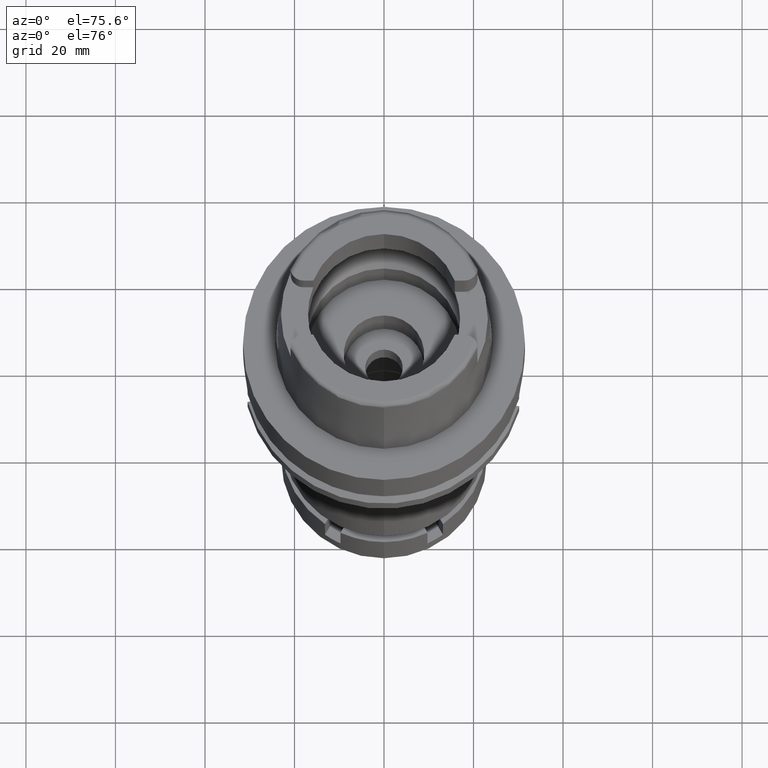
[diagram: clean part render]
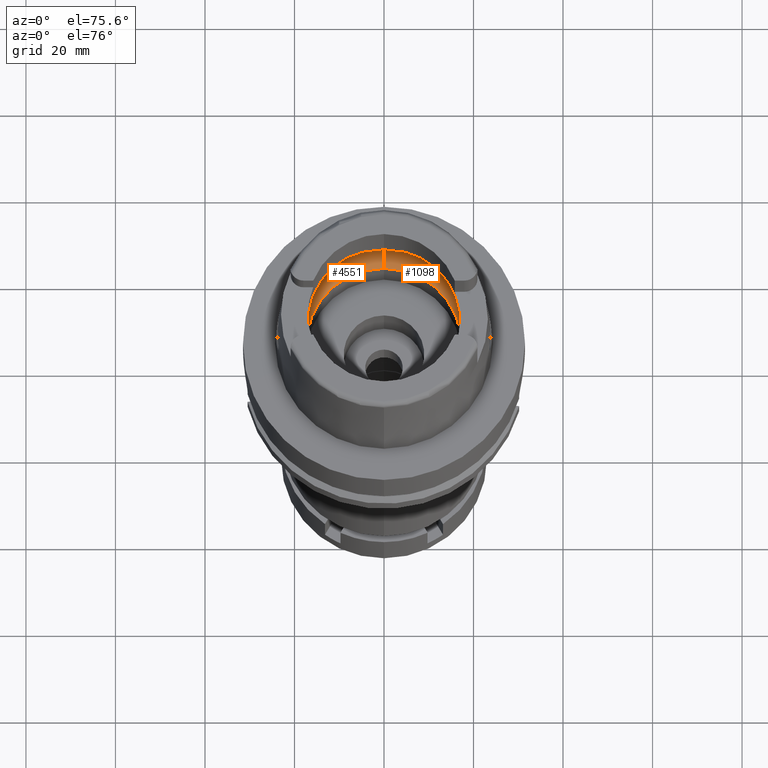
[diagram: same view with one multi-face feature highlighted, each face labeled with its STEP entity id]
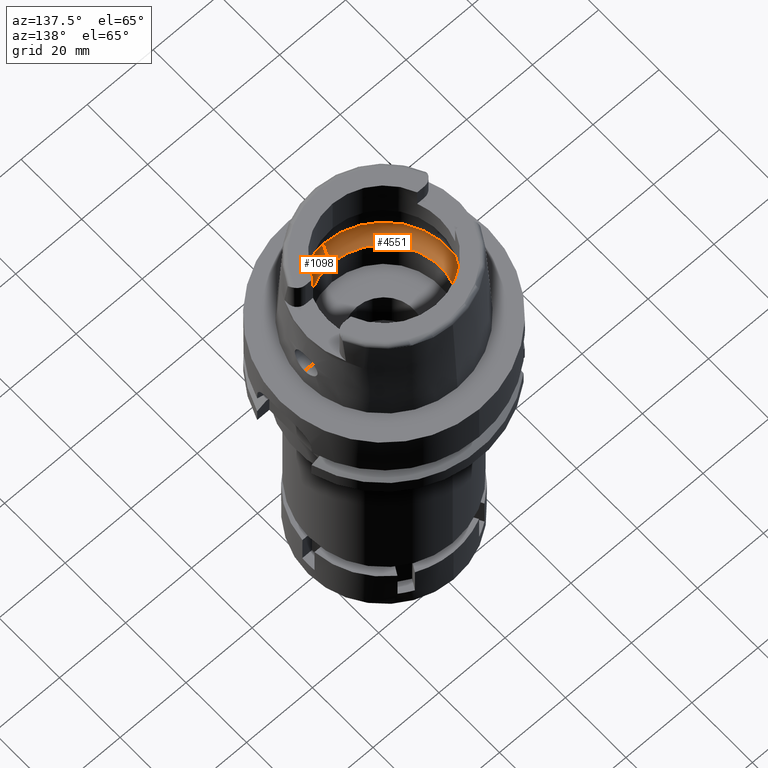
[diagram: same view with one multi-face feature highlighted, each face labeled with its STEP entity id]
A machine part, auxiliary view. The highlighted faces form ONE feature: a constant-radius fillet chain: 2 tangent blend faces with common blend radius 8 mm. The faces share edges in the B-rep.
A second angle (auxiliary view) of the same feature is appended — it is thin or edge-on in the first view.
Their STEP definitions:
[1] entity #4551 (Torus):
#24 = VERTEX_POINT ( 'NONE', #3926 ) ;
#28 = CARTESIAN_POINT ( 'NONE',  ( 0.0000000000000000000, -12.00000000000000000, 6.186348233825000875 ) ) ;
#43 = DIRECTION ( 'NONE',  ( 0.0000000000000000000, 0.0000000000000000000, 1.000000000000000000 ) ) ;
#82 = AXIS2_PLACEMENT_3D ( 'NONE', #3307, #5871, #3799 ) ;
#164 = EDGE_CURVE ( 'NONE', #2658, #5742, #1415, .T. ) ;
#181 = DIRECTION ( 'NONE',  ( 0.0000000000000000000, 0.0000000000000000000, 1.000000000000000000 ) ) ;
#196 = EDGE_CURVE ( 'NONE', #1145, #5079, #1122, .T. ) ;
#233 = CARTESIAN_POINT ( 'NONE',  ( -19.90654447560747542, -1.770008974173177263, 5.691881888190377659 ) ) ;
#263 = CARTESIAN_POINT ( 'NONE',  ( -19.94501428476000271, 0.2480002814738951344, 5.249999999999999112 ) ) ;
#270 = CARTESIAN_POINT ( 'NONE',  ( 0.0000000000000000000, 0.0000000000000000000, 0.1500000000000999700 ) ) ;
#286 = ORIENTED_EDGE ( 'NONE', *, *, #164, .F. ) ;
#296 = DIRECTION ( 'NONE',  ( 0.0000000000000000000, -1.000000000000000000, 0.0000000000000000000 ) ) ;
#351 = ORIENTED_EDGE ( 'NONE', *, *, #196, .T. ) ;
#363 = EDGE_CURVE ( 'NONE', #1145, #2658, #5281, .T. ) ;
#649 = CARTESIAN_POINT ( 'NONE',  ( 0.0000000000000000000, 20.00000000000000000, 6.186348233825000875 ) ) ;
#696 = CARTESIAN_POINT ( 'NONE',  ( -19.92591704426989452, 1.321751840890049490, 5.490650643677390974 ) ) ;
#727 = CARTESIAN_POINT ( 'NONE',  ( -19.92547007504345302, -1.335031240339097369, 5.495683724100088874 ) ) ;
#759 = CARTESIAN_POINT ( 'NONE',  ( -19.86453968564131500, -2.328737885376345407, 6.053878405347992597 ) ) ;
#917 = CARTESIAN_POINT ( 'NONE',  ( -19.84575864665999845, -2.479085262491000030, 6.186348233825000875 ) ) ;
#919 = DIRECTION ( 'NONE',  ( 0.0000000000000000000, -0.6562500000000006661, -0.7545435292281016393 ) ) ;
#1061 = CIRCLE ( 'NONE', #5016, 20.00000000000000000 ) ;
#1122 = CIRCLE ( 'NONE', #5378, 7.999999999999992895 ) ;
#1145 = VERTEX_POINT ( 'NONE', #5796 ) ;
#1378 = ORIENTED_EDGE ( 'NONE', *, *, #3042, .F. ) ;
#1415 = CIRCLE ( 'NONE', #5671, 7.999999999999992895 ) ;
#1641 = CARTESIAN_POINT ( 'NONE',  ( 0.0000000000000000000, 0.0000000000000000000, 6.186348233825000875 ) ) ;
#1706 = CARTESIAN_POINT ( 'NONE',  ( -19.94501428475999916, 0.0000000000000000000, 5.250000000000000000 ) ) ;
#1768 = CARTESIAN_POINT ( 'NONE',  ( -19.92705993187612989, 1.286922590644232978, 5.477696685208107930 ) ) ;
#1783 = AXIS2_PLACEMENT_3D ( 'NONE', #3255, #43, #3285 ) ;
#1824 = FACE_OUTER_BOUND ( 'NONE', #3898, .T. ) ;
#2108 = CARTESIAN_POINT ( 'NONE',  ( -19.91448525756728927, -1.610510976265786987, 5.612925495665686881 ) ) ;
#2136 = CARTESIAN_POINT ( 'NONE',  ( -19.88332310116147283, 2.178371483505385786, 5.921391814315846602 ) ) ;
#2287 = ORIENTED_EDGE ( 'NONE', *, *, #4468, .F. ) ;
#2298 = VERTEX_POINT ( 'NONE', #917 ) ;
#2372 = ORIENTED_EDGE ( 'NONE', *, *, #4418, .F. ) ;
#2572 = CARTESIAN_POINT ( 'NONE',  ( -19.84575864665999845, 2.479085262489999941, 6.186348233825000875 ) ) ;
#2598 = CARTESIAN_POINT ( 'NONE',  ( -19.92646963884338263, 1.305022040076338818, 5.484397814373272340 ) ) ;
#2631 = CARTESIAN_POINT ( 'NONE',  ( -19.92208494194046509, -1.430041077684033990, 5.533135808937241329 ) ) ;
#2651 = CARTESIAN_POINT ( 'NONE',  ( 0.0000000000000000000, 12.00000000000000000, 6.186348233825000875 ) ) ;
#2658 = VERTEX_POINT ( 'NONE', #5928 ) ;
#2661 = CARTESIAN_POINT ( 'NONE',  ( -19.93856671072771292, 0.8185607198028845843, 5.338678409714962214 ) ) ;
#2673 = ORIENTED_EDGE ( 'NONE', *, *, #363, .F. ) ;
#2693 = CARTESIAN_POINT ( 'NONE',  ( -19.93655184384261858, 0.9261166967963114782, 5.364558725656097593 ) ) ;
#2734 = CIRCLE ( 'NONE', #82, 20.00000000000001421 ) ;
#3032 = CARTESIAN_POINT ( 'NONE',  ( -19.90056784349247820, -1.871074272730828048, 5.748194928871746434 ) ) ;
#3042 = EDGE_CURVE ( 'NONE', #5742, #2298, #1061, .T. ) ;
#3064 = DIRECTION ( 'NONE',  ( 0.0000000000000000000, 0.0000000000000000000, -1.000000000000000000 ) ) ;
#3068 = CARTESIAN_POINT ( 'NONE',  ( -19.92467615132159864, -1.358120919786871328, 5.504564686247708671 ) ) ;
#3133 = CARTESIAN_POINT ( 'NONE',  ( -19.92840422587602944, 1.244362650384072122, 5.462311864171463860 ) ) ;
#3255 = CARTESIAN_POINT ( 'NONE',  ( 0.0000000000000000000, 0.0000000000000000000, 6.186348233825000875 ) ) ;
#3285 = DIRECTION ( 'NONE',  ( 0.0000000000000000000, 1.000000000000000000, 0.0000000000000000000 ) ) ;
#3307 = CARTESIAN_POINT ( 'NONE',  ( 0.0000000000000000000, 0.0000000000000000000, 6.186348233825000875 ) ) ;
#3534 = CARTESIAN_POINT ( 'NONE',  ( -19.91819960699401193, -1.528790138807751164, 5.574827418276589341 ) ) ;
#3566 = TOROIDAL_SURFACE ( 'NONE', #1783, 12.00000000000000000, 8.000000000000000000 ) ;
#3567 = CARTESIAN_POINT ( 'NONE',  ( -19.84575864665999845, 2.479085262489999941, 6.186348233825000875 ) ) ;
#3609 = EDGE_CURVE ( 'NONE', #4453, #5079, #2734, .T. ) ;
#3799 = DIRECTION ( 'NONE',  ( -0.9922879323327794543, 0.1239542631244973381, 0.0000000000000000000 ) ) ;
#3898 = EDGE_LOOP ( 'NONE', ( #1378, #286, #2673, #351, #5909, #2372, #2287 ) ) ;
#3926 = CARTESIAN_POINT ( 'NONE',  ( -19.94501428475999916, 0.0000000000000000000, 5.250000000000000000 ) ) ;
#4027 = CARTESIAN_POINT ( 'NONE',  ( -19.92607296192538513, 1.317057065037986030, 5.488888788417265907 ) ) ;
#4064 = CARTESIAN_POINT ( 'NONE',  ( -19.93292508344945801, 1.081630659659294169, 5.408972087979956989 ) ) ;
#4096 = CARTESIAN_POINT ( 'NONE',  ( -19.94340239125193293, 0.4850157974226460000, 5.274610163457148282 ) ) ;
#4097 = AXIS2_PLACEMENT_3D ( 'NONE', #270, #181, #5900 ) ;
#4129 = CARTESIAN_POINT ( 'NONE',  ( -19.94501428475999916, 0.0000000000000000000, 5.250000000000000000 ) ) ;
#4418 = EDGE_CURVE ( 'NONE', #24, #4453, #4421, .T. ) ;
#4421 = B_SPLINE_CURVE_WITH_KNOTS ( 'NONE', 3,
 ( #4129, #263, #4096, #2661, #2693, #4064, #6021, #3133, #1768, #2598, #4027, #696, #4599, #2136, #2572 ),
 .UNSPECIFIED., .F., .F.,
 ( 4, 2, 2, 1, 1, 1, 2, 2, 4 ),
 ( 0.0000000000000000000, 0.2499999999999956146, 0.3749999999999934497, 0.4374999999999923395, 0.4687499999999917288, 0.4843749999999914513, 0.4921874999999914513, 0.4999999999999915623, 1.000000000000000000 ),
 .UNSPECIFIED. ) ;
#4453 = VERTEX_POINT ( 'NONE', #3567 ) ;
#4468 = EDGE_CURVE ( 'NONE', #2298, #24, #5379, .T. ) ;
#4534 = CARTESIAN_POINT ( 'NONE',  ( -19.93856671042052398, -0.9459665778997381480, 5.348222674928019060 ) ) ;
#4551 = ADVANCED_FACE ( 'NONE', ( #1824 ), #3566, .F. ) ;
#4599 = CARTESIAN_POINT ( 'NONE',  ( -19.90996073982917380, 1.795817278995830657, 5.670328124222732136 ) ) ;
#4965 = CARTESIAN_POINT ( 'NONE',  ( -19.92517785718085577, -1.343613127942956842, 5.498962406970089312 ) ) ;
#5016 = AXIS2_PLACEMENT_3D ( 'NONE', #1641, #3064, #296 ) ;
#5055 = CARTESIAN_POINT ( 'NONE',  ( -19.88058961472209774, -2.158414018199903417, 5.925204145833316893 ) ) ;
#5079 = VERTEX_POINT ( 'NONE', #649 ) ;
#5185 = DIRECTION ( 'NONE',  ( 1.000000000000000000, 0.0000000000000000000, 0.0000000000000000000 ) ) ;
#5281 = CIRCLE ( 'NONE', #4097, 17.25000000000000000 ) ;
#5378 = AXIS2_PLACEMENT_3D ( 'NONE', #2651, #5185, #5530 ) ;
#5379 = B_SPLINE_CURVE_WITH_KNOTS ( 'NONE', 3,
 ( #5520, #759, #5055, #3032, #233, #2108, #3534, #2631, #5427, #3068, #4965, #727, #4534, #5955, #1706 ),
 .UNSPECIFIED., .F., .F.,
 ( 4, 2, 2, 1, 1, 1, 2, 2, 4 ),
 ( 0.0000000000000000000, 0.2500000000000051070, 0.3750000000000077716, 0.4375000000000091038, 0.4687500000000098255, 0.4843750000000101030, 0.4921875000000099920, 0.5000000000000098810, 1.000000000000000000 ),
 .UNSPECIFIED. ) ;
#5427 = CARTESIAN_POINT ( 'NONE',  ( -19.92391559123418787, -1.379822842001579009, 5.513022806674898746 ) ) ;
#5520 = CARTESIAN_POINT ( 'NONE',  ( -19.84575864665999845, -2.479085262491000030, 6.186348233825000875 ) ) ;
#5530 = DIRECTION ( 'NONE',  ( 0.0000000000000000000, 0.6562500000000006661, -0.7545435292281016393 ) ) ;
#5623 = DIRECTION ( 'NONE',  ( -1.000000000000000000, 0.0000000000000000000, 0.0000000000000000000 ) ) ;
#5671 = AXIS2_PLACEMENT_3D ( 'NONE', #28, #5623, #919 ) ;
#5742 = VERTEX_POINT ( 'NONE', #5763 ) ;
#5763 = CARTESIAN_POINT ( 'NONE',  ( 0.0000000000000000000, -20.00000000000000000, 6.186348233825000875 ) ) ;
#5796 = CARTESIAN_POINT ( 'NONE',  ( 0.0000000000000000000, 17.25000000000000000, 0.1500000000000999700 ) ) ;
#5871 = DIRECTION ( 'NONE',  ( 0.0000000000000000000, 0.0000000000000000000, -1.000000000000000000 ) ) ;
#5900 = DIRECTION ( 'NONE',  ( 0.0000000000000000000, 1.000000000000000000, 0.0000000000000000000 ) ) ;
#5909 = ORIENTED_EDGE ( 'NONE', *, *, #3609, .F. ) ;
#5928 = CARTESIAN_POINT ( 'NONE',  ( 0.0000000000000000000, -17.25000000000000000, 0.1500000000000999700 ) ) ;
#5955 = CARTESIAN_POINT ( 'NONE',  ( -19.94501428475999560, -0.4960423020627297008, 5.249999999999995559 ) ) ;
#6021 = CARTESIAN_POINT ( 'NONE',  ( -19.93096058823649130, 1.157935579649966629, 5.432577573767241041 ) ) ;
[2] entity #1098 (Torus):
#26 = CARTESIAN_POINT ( 'NONE',  ( 0.0000000000000000000, 0.0000000000000000000, 6.186348233825000875 ) ) ;
#28 = CARTESIAN_POINT ( 'NONE',  ( 0.0000000000000000000, -12.00000000000000000, 6.186348233825000875 ) ) ;
#109 = EDGE_LOOP ( 'NONE', ( #423, #1930, #5712, #5169, #2783, #5518, #4052 ) ) ;
#164 = EDGE_CURVE ( 'NONE', #2658, #5742, #1415, .T. ) ;
#196 = EDGE_CURVE ( 'NONE', #1145, #5079, #1122, .T. ) ;
#339 = CARTESIAN_POINT ( 'NONE',  ( 19.90996060949646207, -1.795819319521763990, 5.670329520825307057 ) ) ;
#423 = ORIENTED_EDGE ( 'NONE', *, *, #1766, .F. ) ;
#479 = DIRECTION ( 'NONE',  ( 0.0000000000000000000, 1.000000000000000000, 0.0000000000000000000 ) ) ;
#501 = EDGE_CURVE ( 'NONE', #2255, #1685, #1894, .T. ) ;
#557 = AXIS2_PLACEMENT_3D ( 'NONE', #4899, #4807, #1116 ) ;
#649 = CARTESIAN_POINT ( 'NONE',  ( 0.0000000000000000000, 20.00000000000000000, 6.186348233825000875 ) ) ;
#865 = CARTESIAN_POINT ( 'NONE',  ( 19.92208506923287814, 1.430037391292425797, 5.533134286467845442 ) ) ;
#919 = DIRECTION ( 'NONE',  ( 0.0000000000000000000, -0.6562500000000006661, -0.7545435292281016393 ) ) ;
#945 = DIRECTION ( 'NONE',  ( 0.0000000000000000000, 1.000000000000000000, 0.0000000000000000000 ) ) ;
#1098 = ADVANCED_FACE ( 'NONE', ( #5704 ), #1422, .F. ) ;
#1116 = DIRECTION ( 'NONE',  ( 0.0000000000000000000, -1.000000000000000000, 0.0000000000000000000 ) ) ;
#1122 = CIRCLE ( 'NONE', #5378, 7.999999999999992895 ) ;
#1133 = EDGE_CURVE ( 'NONE', #2658, #1145, #2711, .T. ) ;
#1145 = VERTEX_POINT ( 'NONE', #5796 ) ;
#1188 = CARTESIAN_POINT ( 'NONE',  ( 19.93856666885426776, -0.8185636124059638696, 5.338679045133562617 ) ) ;
#1219 = CARTESIAN_POINT ( 'NONE',  ( 19.93655178888372248, -0.9261198900591437466, 5.364559530321087344 ) ) ;
#1415 = CIRCLE ( 'NONE', #5671, 7.999999999999992895 ) ;
#1422 = TOROIDAL_SURFACE ( 'NONE', #3211, 12.00000000000000000, 8.000000000000000000 ) ;
#1442 = VERTEX_POINT ( 'NONE', #2722 ) ;
#1446 = AXIS2_PLACEMENT_3D ( 'NONE', #5432, #2237, #4034 ) ;
#1685 = VERTEX_POINT ( 'NONE', #4376 ) ;
#1693 = CARTESIAN_POINT ( 'NONE',  ( 19.91448538158097392, 1.610508053761900316, 5.612924102263618487 ) ) ;
#1743 = CARTESIAN_POINT ( 'NONE',  ( 19.84575864665999845, -2.479085262491000030, 6.186348233825000875 ) ) ;
#1766 = EDGE_CURVE ( 'NONE', #1442, #2255, #3916, .T. ) ;
#1894 = B_SPLINE_CURVE_WITH_KNOTS ( 'NONE', 3,
 ( #5960, #3513, #3607, #1188, #1219, #3076, #5496, #2142, #3574, #5465, #4540, #5997, #339, #2207, #1743 ),
 .UNSPECIFIED., .F., .F.,
 ( 4, 2, 2, 1, 1, 1, 2, 2, 4 ),
 ( 0.0000000000000000000, 0.2499999999999987788, 0.3749999999999982792, 0.4374999999999980571, 0.4687499999999978906, 0.4843749999999975020, 0.4921874999999975575, 0.4999999999999975575, 1.000000000000000000 ),
 .UNSPECIFIED. ) ;
#1930 = ORIENTED_EDGE ( 'NONE', *, *, #2429, .F. ) ;
#2142 = CARTESIAN_POINT ( 'NONE',  ( 19.92840411800285594, -1.244366584479167814, 5.462313247185328180 ) ) ;
#2207 = CARTESIAN_POINT ( 'NONE',  ( 19.88332301270218849, -2.178372191595286722, 5.921392438207989883 ) ) ;
#2237 = DIRECTION ( 'NONE',  ( 0.0000000000000000000, 0.0000000000000000000, -1.000000000000000000 ) ) ;
#2244 = CARTESIAN_POINT ( 'NONE',  ( 19.94501428475999916, 0.0000000000000000000, 5.250000000000000000 ) ) ;
#2255 = VERTEX_POINT ( 'NONE', #2244 ) ;
#2348 = DIRECTION ( 'NONE',  ( 0.0000000000000000000, 0.0000000000000000000, 1.000000000000000000 ) ) ;
#2429 = EDGE_CURVE ( 'NONE', #5079, #1442, #5105, .T. ) ;
#2644 = EDGE_CURVE ( 'NONE', #1685, #5742, #6008, .T. ) ;
#2651 = CARTESIAN_POINT ( 'NONE',  ( 0.0000000000000000000, 12.00000000000000000, 6.186348233825000875 ) ) ;
#2658 = VERTEX_POINT ( 'NONE', #5928 ) ;
#2711 = CIRCLE ( 'NONE', #557, 17.25000000000000000 ) ;
#2722 = CARTESIAN_POINT ( 'NONE',  ( 19.84575864665999845, 2.479085262491000030, 6.186348233825000875 ) ) ;
#2739 = CARTESIAN_POINT ( 'NONE',  ( 19.88058969236893248, 2.158413152841909710, 5.925203484518101860 ) ) ;
#2783 = ORIENTED_EDGE ( 'NONE', *, *, #164, .T. ) ;
#3076 = CARTESIAN_POINT ( 'NONE',  ( 19.93292500493674524, -1.081634238850528451, 5.408973163817647034 ) ) ;
#3119 = CARTESIAN_POINT ( 'NONE',  ( 19.94501428475999560, 0.4960402853743068885, 5.250000000000000888 ) ) ;
#3210 = CARTESIAN_POINT ( 'NONE',  ( 19.84575864665999845, 2.479085262491000030, 6.186348233825000875 ) ) ;
#3211 = AXIS2_PLACEMENT_3D ( 'NONE', #4714, #2348, #479 ) ;
#3513 = CARTESIAN_POINT ( 'NONE',  ( 19.94501428476000271, -0.2480012822880987844, 5.249999999999999112 ) ) ;
#3574 = CARTESIAN_POINT ( 'NONE',  ( 19.92705981527248937, -1.286926606873724177, 5.477698152406411225 ) ) ;
#3586 = CARTESIAN_POINT ( 'NONE',  ( 19.91819973341333494, 1.528786876978563081, 5.574825955112490128 ) ) ;
#3607 = CARTESIAN_POINT ( 'NONE',  ( 19.94340238078356720, -0.4850176595367738930, 5.274610361541468784 ) ) ;
#3651 = CARTESIAN_POINT ( 'NONE',  ( 19.92467627844356315, 1.358116918539516105, 5.504563131531952536 ) ) ;
#3916 = B_SPLINE_CURVE_WITH_KNOTS ( 'NONE', 3,
 ( #3210, #4051, #2739, #4616, #5941, #1693, #3586, #865, #5507, #3651, #4643, #5475, #5539, #3119, #5974 ),
 .UNSPECIFIED., .F., .F.,
 ( 4, 2, 2, 1, 1, 1, 2, 2, 4 ),
 ( 0.0000000000000000000, 0.2499999999999974465, 0.3749999999999963918, 0.4374999999999956701, 0.4687499999999954481, 0.4843749999999952816, 0.4921874999999951705, 0.4999999999999951150, 1.000000000000000000 ),
 .UNSPECIFIED. ) ;
#4034 = DIRECTION ( 'NONE',  ( 0.9922879323327794543, -0.1239542631244973381, 0.0000000000000000000 ) ) ;
#4051 = CARTESIAN_POINT ( 'NONE',  ( 19.86453973035716913, 2.328737527430568832, 6.053878089964933373 ) ) ;
#4052 = ORIENTED_EDGE ( 'NONE', *, *, #501, .F. ) ;
#4376 = CARTESIAN_POINT ( 'NONE',  ( 19.84575864665999845, -2.479085262491000030, 6.186348233825000875 ) ) ;
#4540 = CARTESIAN_POINT ( 'NONE',  ( 19.92607283891191727, -1.317061137141596561, 5.488890315884850324 ) ) ;
#4616 = CARTESIAN_POINT ( 'NONE',  ( 19.90056795285844515, 1.871072381426653441, 5.748193827892328578 ) ) ;
#4643 = CARTESIAN_POINT ( 'NONE',  ( 19.92517798419735797, 1.343609062691558220, 5.498960846759620935 ) ) ;
#4714 = CARTESIAN_POINT ( 'NONE',  ( 0.0000000000000000000, 0.0000000000000000000, 6.186348233825000875 ) ) ;
#4807 = DIRECTION ( 'NONE',  ( 0.0000000000000000000, 0.0000000000000000000, 1.000000000000000000 ) ) ;
#4899 = CARTESIAN_POINT ( 'NONE',  ( 0.0000000000000000000, 0.0000000000000000000, 0.1500000000000999700 ) ) ;
#5079 = VERTEX_POINT ( 'NONE', #649 ) ;
#5105 = CIRCLE ( 'NONE', #6004, 20.00000000000000000 ) ;
#5169 = ORIENTED_EDGE ( 'NONE', *, *, #1133, .F. ) ;
#5183 = DIRECTION ( 'NONE',  ( 0.0000000000000000000, 0.0000000000000000000, -1.000000000000000000 ) ) ;
#5185 = DIRECTION ( 'NONE',  ( 1.000000000000000000, 0.0000000000000000000, 0.0000000000000000000 ) ) ;
#5378 = AXIS2_PLACEMENT_3D ( 'NONE', #2651, #5185, #5530 ) ;
#5432 = CARTESIAN_POINT ( 'NONE',  ( 0.0000000000000000000, 0.0000000000000000000, 6.186348233825000875 ) ) ;
#5465 = CARTESIAN_POINT ( 'NONE',  ( 19.92646951840612246, -1.305026090026948804, 5.484399317726082579 ) ) ;
#5475 = CARTESIAN_POINT ( 'NONE',  ( 19.92547020324161622, 1.335027099705168530, 5.495682146681664548 ) ) ;
#5496 = CARTESIAN_POINT ( 'NONE',  ( 19.93096049696546856, -1.157939335591919860, 5.432578789541300246 ) ) ;
#5507 = CARTESIAN_POINT ( 'NONE',  ( 19.92391571847980103, 1.379818936262085627, 5.513021260670413426 ) ) ;
#5518 = ORIENTED_EDGE ( 'NONE', *, *, #2644, .F. ) ;
#5530 = DIRECTION ( 'NONE',  ( 0.0000000000000000000, 0.6562500000000006661, -0.7545435292281016393 ) ) ;
#5539 = CARTESIAN_POINT ( 'NONE',  ( 19.93856675271270262, 0.9459631445366571967, 5.348221889602998047 ) ) ;
#5623 = DIRECTION ( 'NONE',  ( -1.000000000000000000, 0.0000000000000000000, 0.0000000000000000000 ) ) ;
#5671 = AXIS2_PLACEMENT_3D ( 'NONE', #28, #5623, #919 ) ;
#5704 = FACE_OUTER_BOUND ( 'NONE', #109, .T. ) ;
#5712 = ORIENTED_EDGE ( 'NONE', *, *, #196, .F. ) ;
#5742 = VERTEX_POINT ( 'NONE', #5763 ) ;
#5763 = CARTESIAN_POINT ( 'NONE',  ( 0.0000000000000000000, -20.00000000000000000, 6.186348233825000875 ) ) ;
#5796 = CARTESIAN_POINT ( 'NONE',  ( 0.0000000000000000000, 17.25000000000000000, 0.1500000000000999700 ) ) ;
#5928 = CARTESIAN_POINT ( 'NONE',  ( 0.0000000000000000000, -17.25000000000000000, 0.1500000000000999700 ) ) ;
#5941 = CARTESIAN_POINT ( 'NONE',  ( 19.90654459260026954, 1.770006697071616619, 5.691880654305785825 ) ) ;
#5960 = CARTESIAN_POINT ( 'NONE',  ( 19.94501428475999916, 0.0000000000000000000, 5.250000000000000000 ) ) ;
#5974 = CARTESIAN_POINT ( 'NONE',  ( 19.94501428475999916, 0.0000000000000000000, 5.250000000000000000 ) ) ;
#5997 = CARTESIAN_POINT ( 'NONE',  ( 19.92591691872320681, -1.321755966737424792, 5.490652197696729075 ) ) ;
#6004 = AXIS2_PLACEMENT_3D ( 'NONE', #26, #5183, #945 ) ;
#6008 = CIRCLE ( 'NONE', #1446, 20.00000000000001421 ) ;